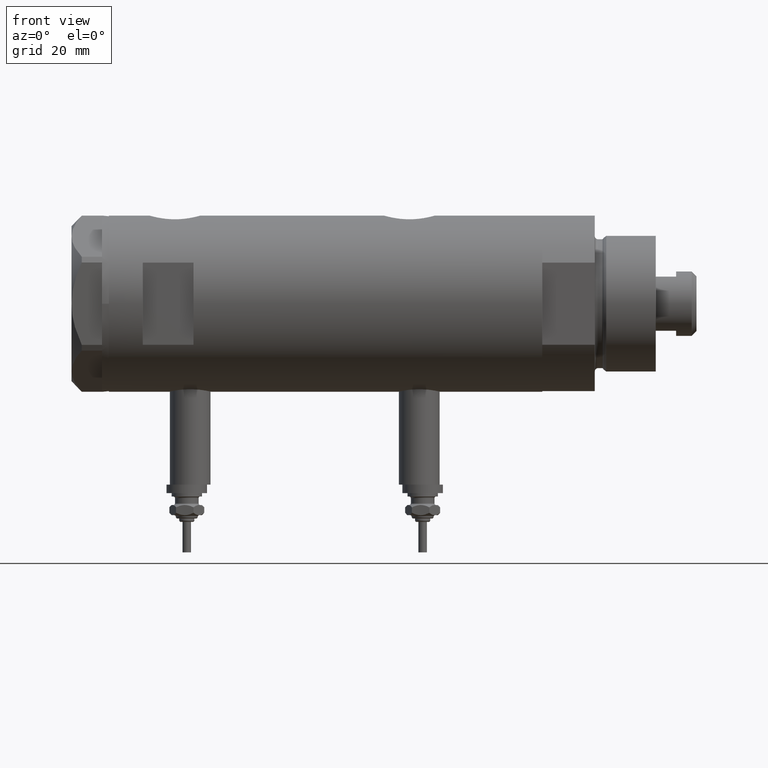
[diagram: clean part render]
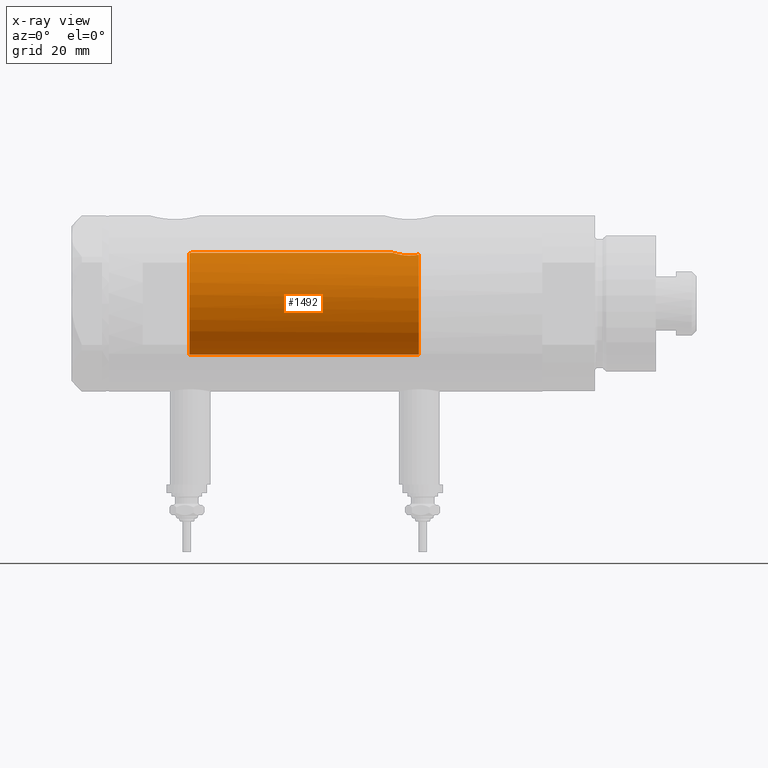
[diagram: x-ray — body ghosted, one internal face saturated and labeled with its STEP entity id]
A machine part, front view, then the same camera in x-ray: the body is ghosted and one INTERNAL B-rep face — a face not visible from any outside direction — is saturated and labeled: STEP entity #1492.
In plain terms, the highlighted cylindrical surface (partial cylindrical patch) has radius 15 mm, axis along (1, 0, -0).
Its self-contained STEP definition (entity closure, byte-faithful):
#27 = FACE_OUTER_BOUND ( 'NONE', #4258, .T. ) ;
#114 = EDGE_CURVE ( 'NONE', #3783, #2997, #1166, .T. ) ;
#188 = CARTESIAN_POINT ( 'NONE',  ( 14.90017778876745069, -1.739641523727900596, -20.20130925695125867 ) ) ;
#215 = CARTESIAN_POINT ( 'NONE',  ( 14.84733308118440398, -2.144376633039214219, -20.37751912952715472 ) ) ;
#252 = CARTESIAN_POINT ( 'NONE',  ( 15.00000000000000000, 5.959273468635536151E-16, -19.88500000000000156 ) ) ;
#422 = CARTESIAN_POINT ( 'NONE',  ( 0.000000000000000000, 0.000000000000000000, 40.15000000000000568 ) ) ;
#436 = CARTESIAN_POINT ( 'NONE',  ( 14.85289483991917336, -2.102865829523694607, 40.05860377881607093 ) ) ;
#488 = CARTESIAN_POINT ( 'NONE',  ( -15.00000000000000000, 0.000000000000000000, 63.95000000000000995 ) ) ;
#514 = CARTESIAN_POINT ( 'NONE',  ( 14.46277203719950855, -3.978470183374505975, -27.55000000000000426 ) ) ;
#546 = CIRCLE ( 'NONE', #1181, 15.00000000000000000 ) ;
#567 = CARTESIAN_POINT ( 'NONE',  ( 14.93900636919599911, -1.364886281976677163, 39.77622504971314044 ) ) ;
#576 = LINE ( 'NONE', #488, #3301 ) ;
#602 = CARTESIAN_POINT ( 'NONE',  ( -15.00000000000000000, 0.000000000000000000, -27.55000000000000426 ) ) ;
#718 = CARTESIAN_POINT ( 'NONE',  ( 14.42796883436190569, -4.108435602805831977, -22.10726922759031510 ) ) ;
#719 = VERTEX_POINT ( 'NONE', #602 ) ;
#952 = ORIENTED_EDGE ( 'NONE', *, *, #1818, .T. ) ;
#973 = CARTESIAN_POINT ( 'NONE',  ( 14.30602371879161439, -4.510400617436905790, -26.58665028800271557 ) ) ;
#1055 = CARTESIAN_POINT ( 'NONE',  ( 14.98404828787190191, -0.7909490205761877668, 39.63356230794191504 ) ) ;
#1127 = CARTESIAN_POINT ( 'NONE',  ( 14.92307637240703677, -1.532123959568890248, -20.12726557582076126 ) ) ;
#1165 = CARTESIAN_POINT ( 'NONE',  ( 14.97537530859971966, -0.8874117095427782598, -19.96137464055827948 ) ) ;
#1166 = B_SPLINE_CURVE_WITH_KNOTS ( 'NONE', 3,
 ( #2411, #2978, #1055, #567, #5901, #1472, #436, #4870 ),
 .UNSPECIFIED., .F., .F.,
 ( 4, 2, 2, 4 ),
 ( 2.641598245732904660E-19, 0.001182100180564266394, 0.001773150270846399592, 0.002364200361128532789 ),
 .UNSPECIFIED. ) ;
#1181 = AXIS2_PLACEMENT_3D ( 'NONE', #2539, #2606, #4532 ) ;
#1260 = ORIENTED_EDGE ( 'NONE', *, *, #2015, .F. ) ;
#1472 = CARTESIAN_POINT ( 'NONE',  ( 14.87720562886504538, -1.924385875533401125, 39.97741675737692901 ) ) ;
#1492 = ADVANCED_FACE ( 'NONE', ( #27 ), #1571, .F. ) ;
#1499 = CARTESIAN_POINT ( 'NONE',  ( 14.82638779339054480, -2.275571356824482638, 40.15000000000000568 ) ) ;
#1508 = VERTEX_POINT ( 'NONE', #514 ) ;
#1571 = CYLINDRICAL_SURFACE ( 'NONE', #2464, 15.00000000000000000 ) ;
#1647 = CARTESIAN_POINT ( 'NONE',  ( 14.96064712090283777, -1.106639041422191605, -20.00738179736371336 ) ) ;
#1818 = EDGE_CURVE ( 'NONE', #1508, #719, #546, .T. ) ;
#1949 = ORIENTED_EDGE ( 'NONE', *, *, #2248, .T. ) ;
#1962 = CARTESIAN_POINT ( 'NONE',  ( 14.23846660849503465, -4.718934182878723682, -25.95401121469808459 ) ) ;
#2015 = EDGE_CURVE ( 'NONE', #1508, #4972, #3473, .T. ) ;
#2120 = AXIS2_PLACEMENT_3D ( 'NONE', #422, #5765, #4318 ) ;
#2222 = CIRCLE ( 'NONE', #2120, 15.00000000000000000 ) ;
#2248 = EDGE_CURVE ( 'NONE', #3783, #4972, #3613, .T. ) ;
#2339 = ORIENTED_EDGE ( 'NONE', *, *, #4598, .T. ) ;
#2386 = CARTESIAN_POINT ( 'NONE',  ( 14.33349657381506681, -4.422893686125039636, -26.78827841538882737 ) ) ;
#2411 = CARTESIAN_POINT ( 'NONE',  ( 15.00000000000000000, 0.000000000000000000, 39.58500000000000085 ) ) ;
#2464 = AXIS2_PLACEMENT_3D ( 'NONE', #2509, #3469, #3917 ) ;
#2482 = EDGE_CURVE ( 'NONE', #3239, #719, #576, .T. ) ;
#2509 = CARTESIAN_POINT ( 'NONE',  ( 0.000000000000000000, 0.000000000000000000, 63.95000000000000995 ) ) ;
#2539 = CARTESIAN_POINT ( 'NONE',  ( 0.000000000000000000, 0.000000000000000000, -27.55000000000000426 ) ) ;
#2574 = CARTESIAN_POINT ( 'NONE',  ( 14.33594561531103473, -4.414979644548147952, -22.69453393419243525 ) ) ;
#2606 = DIRECTION ( 'NONE',  ( 0.000000000000000000, 0.000000000000000000, -1.000000000000000000 ) ) ;
#2642 = CARTESIAN_POINT ( 'NONE',  ( 14.72015646623405871, -2.909233045280604113, -20.82572079632733519 ) ) ;
#2671 = CARTESIAN_POINT ( 'NONE',  ( 14.18781489734108270, -4.868896704194245473, -24.85545969036061464 ) ) ;
#2946 = ORIENTED_EDGE ( 'NONE', *, *, #114, .F. ) ;
#2978 = CARTESIAN_POINT ( 'NONE',  ( 15.00000000000000178, -0.3999014018875941545, 39.58500000000000085 ) ) ;
#2997 = VERTEX_POINT ( 'NONE', #1499 ) ;
#3097 = DIRECTION ( 'NONE',  ( -0.000000000000000000, -0.000000000000000000, -1.000000000000000000 ) ) ;
#3119 = CARTESIAN_POINT ( 'NONE',  ( 14.25977760983849230, -4.654557688538887739, -23.31736805897653042 ) ) ;
#3239 = VERTEX_POINT ( 'NONE', #4675 ) ;
#3301 = VECTOR ( 'NONE', #3449, 1000.000000000000000 ) ;
#3449 = DIRECTION ( 'NONE',  ( -0.000000000000000000, -0.000000000000000000, -1.000000000000000000 ) ) ;
#3469 = DIRECTION ( 'NONE',  ( -0.000000000000000000, -0.000000000000000000, -1.000000000000000000 ) ) ;
#3473 = B_SPLINE_CURVE_WITH_KNOTS ( 'NONE', 3,
 ( #4150, #5282, #6265, #2386, #973, #4380, #1962, #3887, #5458, #2671, #6006, #5560, #4024, #5966, #3119, #6032, #2574, #718, #5500, #4158, #2642, #5628, #215, #188, #1127, #1647, #1165, #6068, #3570, #252 ),
 .UNSPECIFIED., .F., .F.,
 ( 4, 2, 2, 2, 2, 2, 2, 2, 2, 2, 2, 2, 2, 2, 4 ),
 ( 0.004672505804584291961, 0.005337629501999298885, 0.006002753199414305810, 0.006667876896829313602, 0.007333000594244319659, 0.007998124291659327451, 0.008663247989074335242, 0.009328371686489341300, 0.009993495383904347357, 0.01132374277873436988, 0.01265399017356439067, 0.01331911387097940366, 0.01398423756839441666, 0.01464936126580942966, 0.01531448496322444265 ),
 .UNSPECIFIED. ) ;
#3570 = CARTESIAN_POINT ( 'NONE',  ( 15.00000000000000000, -0.2216692655473424256, -19.88499999999999801 ) ) ;
#3613 = LINE ( 'NONE', #4138, #5554 ) ;
#3783 = VERTEX_POINT ( 'NONE', #4078 ) ;
#3887 = CARTESIAN_POINT ( 'NONE',  ( 14.20819413761015326, -4.809312895991455505, -25.51713251522166104 ) ) ;
#3917 = DIRECTION ( 'NONE',  ( -1.000000000000000000, 0.000000000000000000, 0.000000000000000000 ) ) ;
#4024 = CARTESIAN_POINT ( 'NONE',  ( 14.20926245015526135, -4.806160851464704287, -23.96377327795615031 ) ) ;
#4078 = CARTESIAN_POINT ( 'NONE',  ( 15.00000000000000000, 0.000000000000000000, 39.58500000000000085 ) ) ;
#4138 = CARTESIAN_POINT ( 'NONE',  ( 15.00000000000000000, 1.836970198721029194E-15, 63.95000000000000995 ) ) ;
#4150 = CARTESIAN_POINT ( 'NONE',  ( 14.46277203719950855, -3.978470183374505975, -27.55000000000000426 ) ) ;
#4158 = CARTESIAN_POINT ( 'NONE',  ( 14.64727859494137263, -3.248701865452403581, -21.10174013696654782 ) ) ;
#4258 = EDGE_LOOP ( 'NONE', ( #2946, #1949, #1260, #952, #4836, #2339 ) ) ;
#4318 = DIRECTION ( 'NONE',  ( 1.000000000000000000, 0.000000000000000000, 0.000000000000000000 ) ) ;
#4380 = CARTESIAN_POINT ( 'NONE',  ( 14.25856516724843814, -4.658255869285517825, -26.17044016644936733 ) ) ;
#4532 = DIRECTION ( 'NONE',  ( -1.000000000000000000, 0.000000000000000000, 0.000000000000000000 ) ) ;
#4598 = EDGE_CURVE ( 'NONE', #3239, #2997, #2222, .T. ) ;
#4675 = CARTESIAN_POINT ( 'NONE',  ( -15.00000000000000000, 0.000000000000000000, 40.15000000000000568 ) ) ;
#4836 = ORIENTED_EDGE ( 'NONE', *, *, #2482, .F. ) ;
#4870 = CARTESIAN_POINT ( 'NONE',  ( 14.82638779339054480, -2.275571356824482638, 40.15000000000000568 ) ) ;
#4972 = VERTEX_POINT ( 'NONE', #5925 ) ;
#5282 = CARTESIAN_POINT ( 'NONE',  ( 14.42775250319760083, -4.105775281508736718, -27.36911445102908758 ) ) ;
#5458 = CARTESIAN_POINT ( 'NONE',  ( 14.19797987272029438, -4.839174951492910104, -25.29741451501410765 ) ) ;
#5500 = CARTESIAN_POINT ( 'NONE',  ( 14.49994286062941207, -3.853373987417221702, -21.74743896782911534 ) ) ;
#5554 = VECTOR ( 'NONE', #3097, 1000.000000000000000 ) ;
#5560 = CARTESIAN_POINT ( 'NONE',  ( 14.19858338301463085, -4.837406781463695182, -24.18614104090498884 ) ) ;
#5628 = CARTESIAN_POINT ( 'NONE',  ( 14.81710879718117724, -2.343063746046469387, -20.48067662538953471 ) ) ;
#5765 = DIRECTION ( 'NONE',  ( 0.000000000000000000, 0.000000000000000000, 1.000000000000000000 ) ) ;
#5901 = CARTESIAN_POINT ( 'NONE',  ( 14.92029983160078466, -1.555365312915176323, 39.83609703141412695 ) ) ;
#5925 = CARTESIAN_POINT ( 'NONE',  ( 15.00000000000000000, 5.959273468635536151E-16, -19.88500000000000156 ) ) ;
#5966 = CARTESIAN_POINT ( 'NONE',  ( 14.23984499268010673, -4.714778477509576682, -23.53008258614764614 ) ) ;
#6006 = CARTESIAN_POINT ( 'NONE',  ( 14.18786347641749757, -4.868757996482117711, -24.63322300400293230 ) ) ;
#6032 = CARTESIAN_POINT ( 'NONE',  ( 14.30772250772360188, -4.505024017690379523, -22.90010806953218037 ) ) ;
#6068 = CARTESIAN_POINT ( 'NONE',  ( 14.99508877558422704, -0.4434836953032585405, -19.90007684727664028 ) ) ;
#6265 = CARTESIAN_POINT ( 'NONE',  ( 14.39424372609267522, -4.221002267729139668, -27.17893131093289938 ) ) ;